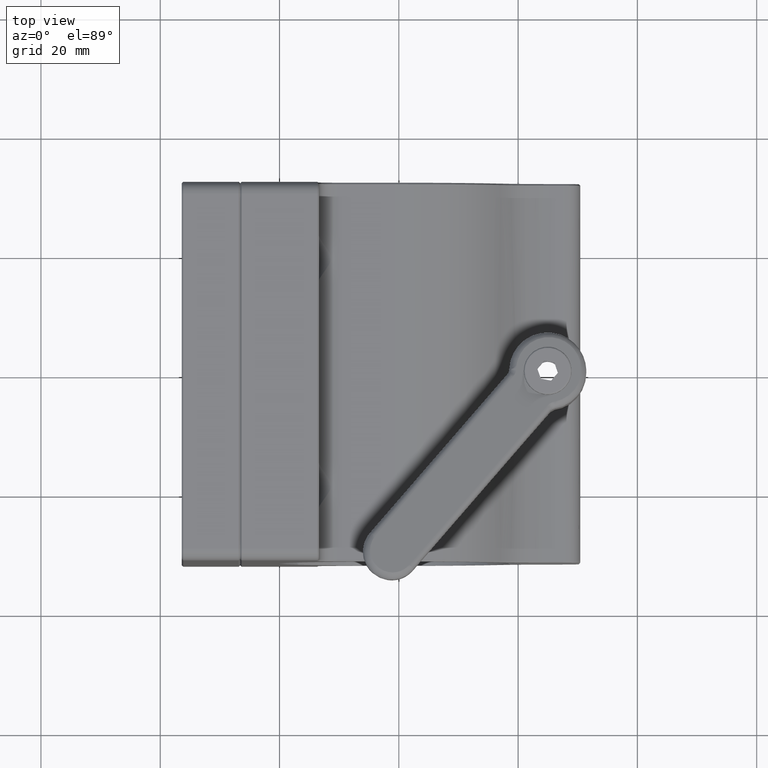
[diagram: clean part render]
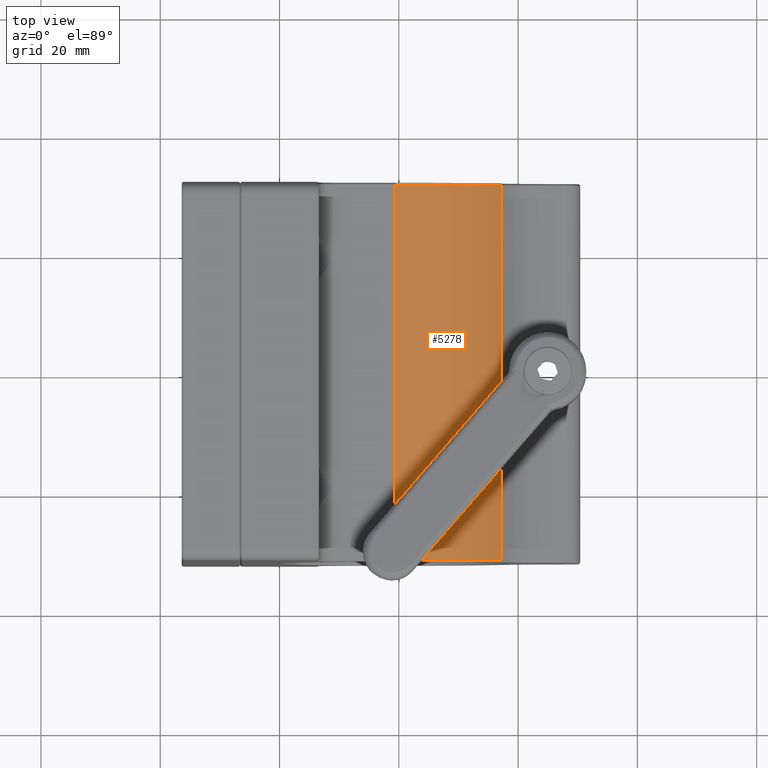
[diagram: same view with one face highlighted and labeled with its STEP entity id]
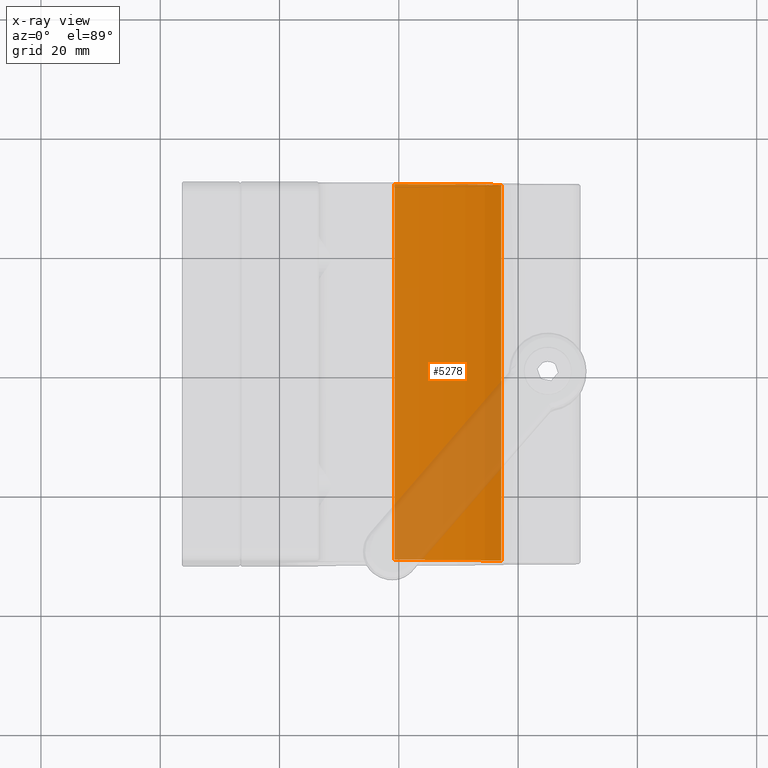
[diagram: x-ray of the same camera — body ghosted, the highlighted face saturated]
A machine part, top view. The second image highlights one B-rep face of the part: STEP entity #5278.
The next image is the same camera in x-ray: the body ghosted, the highlighted face saturated — about 22% of this face is hidden behind the body in this view.
In plain terms, the highlighted cylindrical surface (partial cylindrical patch) has radius 22.1 mm, axis along (-0, 1, -0).
Its self-contained STEP definition (entity closure, byte-faithful):
#282 = CARTESIAN_POINT ( 'NONE',  ( 37.16720140787726478, 31.50000000000000000, 13.01214953271028385 ) ) ;
#919 = DIRECTION ( 'NONE',  ( -0.000000000000000000, 1.000000000000000000, -0.000000000000000000 ) ) ;
#1836 = CARTESIAN_POINT ( 'NONE',  ( 19.30399999999999849, -31.75000000000001421, 22.10000000000000853 ) ) ;
#1902 = AXIS2_PLACEMENT_3D ( 'NONE', #4293, #9254, #14198 ) ;
#2374 = VERTEX_POINT ( 'NONE', #9049 ) ;
#3414 = DIRECTION ( 'NONE',  ( 0.000000000000000000, 0.000000000000000000, 1.000000000000000000 ) ) ;
#3433 = AXIS2_PLACEMENT_3D ( 'NONE', #4555, #14779, #3414 ) ;
#4293 = CARTESIAN_POINT ( 'NONE',  ( 19.30400000000000205, -31.75000000000001421, 0.000000000000000000 ) ) ;
#4306 = DIRECTION ( 'NONE',  ( 0.000000000000000000, 0.000000000000000000, -1.000000000000000000 ) ) ;
#4555 = CARTESIAN_POINT ( 'NONE',  ( 19.30400000000000205, -31.50000000000000000, 0.000000000000000000 ) ) ;
#4895 = EDGE_CURVE ( 'NONE', #6861, #12138, #14461, .T. ) ;
#4931 = CIRCLE ( 'NONE', #7788, 22.10000000000001208 ) ;
#5278 = ADVANCED_FACE ( 'NONE', ( #10540 ), #6964, .T. ) ;
#5537 = CARTESIAN_POINT ( 'NONE',  ( 19.30400000000000205, 31.50000000000000000, 0.000000000000000000 ) ) ;
#5674 = CARTESIAN_POINT ( 'NONE',  ( 37.16720140787726478, -31.50000000000000000, 13.01214953271028385 ) ) ;
#6344 = EDGE_CURVE ( 'NONE', #7455, #6861, #15884, .T. ) ;
#6861 = VERTEX_POINT ( 'NONE', #5674 ) ;
#6964 = CYLINDRICAL_SURFACE ( 'NONE', #1902, 22.10000000000001208 ) ;
#7067 = VECTOR ( 'NONE', #919, 1000.000000000000000 ) ;
#7455 = VERTEX_POINT ( 'NONE', #14204 ) ;
#7656 = ORIENTED_EDGE ( 'NONE', *, *, #13470, .T. ) ;
#7788 = AXIS2_PLACEMENT_3D ( 'NONE', #5537, #15427, #4306 ) ;
#8554 = ORIENTED_EDGE ( 'NONE', *, *, #4895, .T. ) ;
#9049 = CARTESIAN_POINT ( 'NONE',  ( 19.30399999999999849, 31.50000000000000000, 22.10000000000000853 ) ) ;
#9254 = DIRECTION ( 'NONE',  ( -0.000000000000000000, 1.000000000000000000, -0.000000000000000000 ) ) ;
#9545 = LINE ( 'NONE', #1836, #10627 ) ;
#10540 = FACE_OUTER_BOUND ( 'NONE', #14842, .T. ) ;
#10627 = VECTOR ( 'NONE', #11741, 1000.000000000000000 ) ;
#11741 = DIRECTION ( 'NONE',  ( -0.000000000000000000, 1.000000000000000000, -0.000000000000000000 ) ) ;
#12032 = CARTESIAN_POINT ( 'NONE',  ( 37.16720140787726478, -31.75000000000001421, 13.01214953271028385 ) ) ;
#12058 = ORIENTED_EDGE ( 'NONE', *, *, #15153, .F. ) ;
#12138 = VERTEX_POINT ( 'NONE', #282 ) ;
#13470 = EDGE_CURVE ( 'NONE', #12138, #2374, #4931, .T. ) ;
#14198 = DIRECTION ( 'NONE',  ( 0.000000000000000000, 0.000000000000000000, 1.000000000000000000 ) ) ;
#14204 = CARTESIAN_POINT ( 'NONE',  ( 19.30399999999999849, -31.50000000000000000, 22.10000000000000853 ) ) ;
#14461 = LINE ( 'NONE', #12032, #7067 ) ;
#14606 = ORIENTED_EDGE ( 'NONE', *, *, #6344, .T. ) ;
#14779 = DIRECTION ( 'NONE',  ( 0.000000000000000000, 1.000000000000000000, 0.000000000000000000 ) ) ;
#14842 = EDGE_LOOP ( 'NONE', ( #12058, #14606, #8554, #7656 ) ) ;
#15153 = EDGE_CURVE ( 'NONE', #7455, #2374, #9545, .T. ) ;
#15427 = DIRECTION ( 'NONE',  ( -0.000000000000000000, -1.000000000000000000, -0.000000000000000000 ) ) ;
#15884 = CIRCLE ( 'NONE', #3433, 22.10000000000001208 ) ;